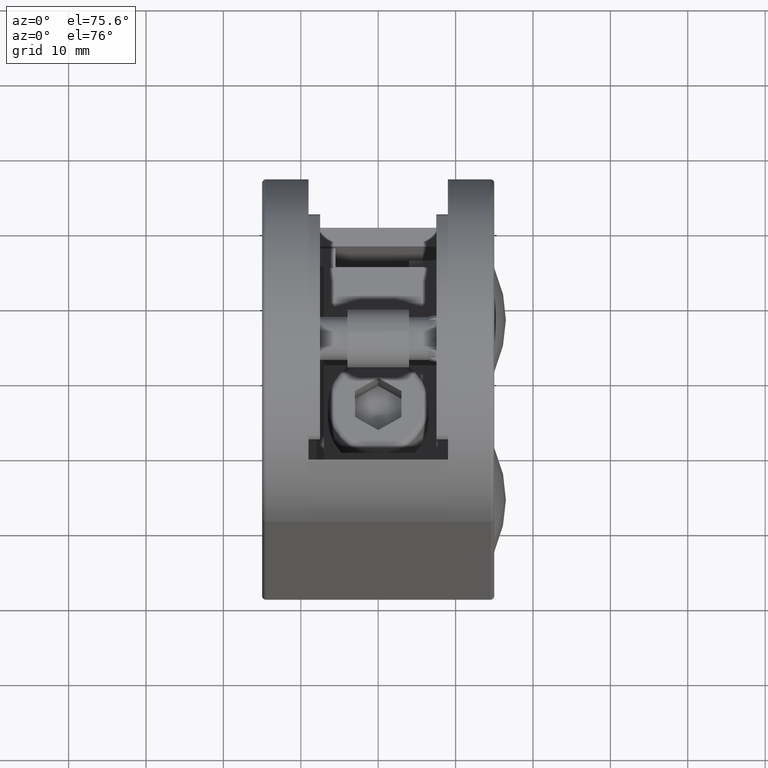
[diagram: clean part render]
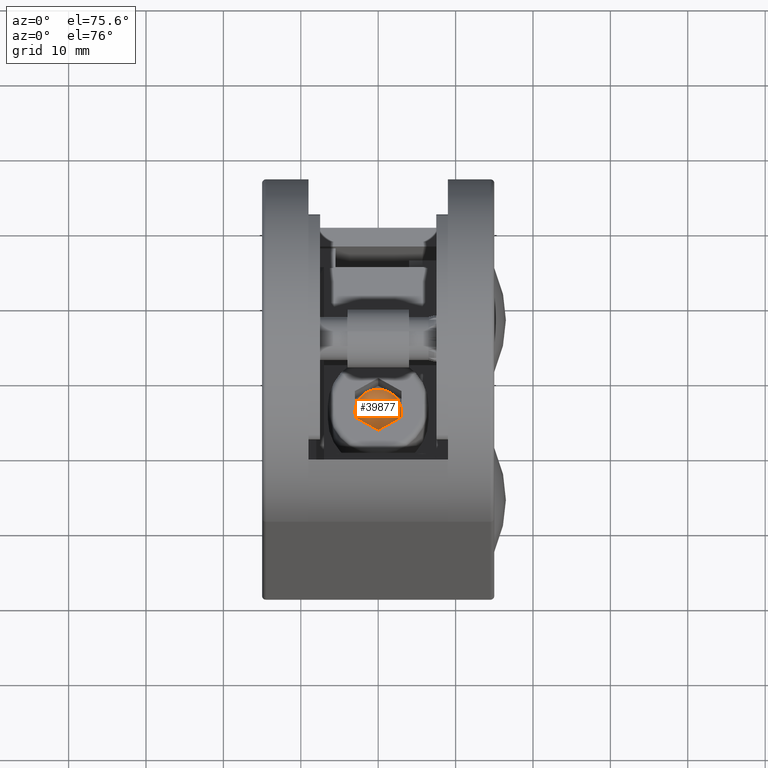
[diagram: same view with one face highlighted and labeled with its STEP entity id]
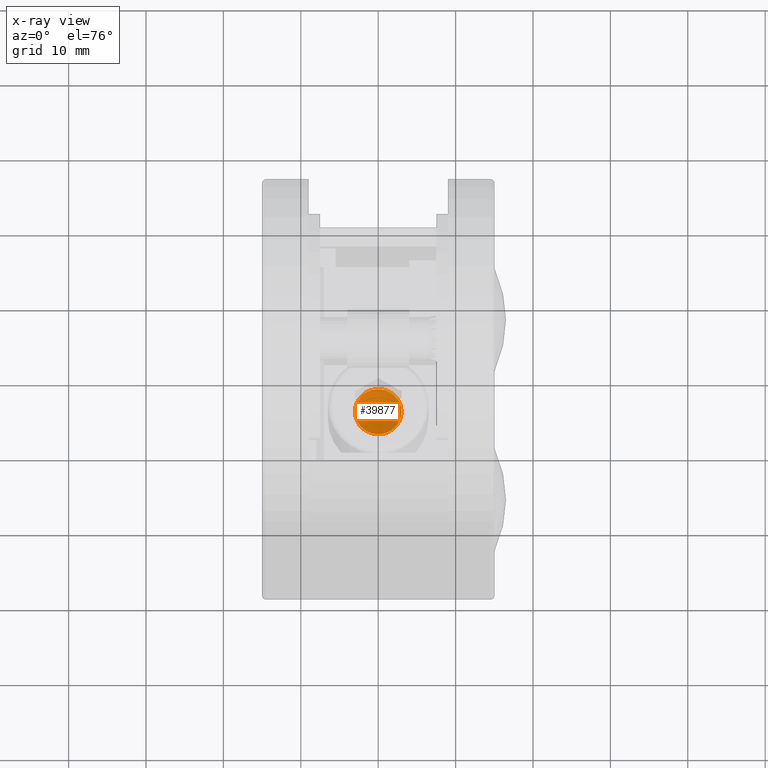
[diagram: x-ray of the same camera — body ghosted, the highlighted face saturated]
A machine part, auxiliary view. The second image highlights one B-rep face of the part: STEP entity #39877.
The next image is the same camera in x-ray: the body ghosted, the highlighted face saturated — about 0% of this face is hidden behind the body in this view.
In plain terms, the highlighted conical surface has half-angle 60 deg.
Its self-contained STEP definition (entity closure, byte-faithful):
#3739 = ORIENTED_EDGE ( 'NONE', *, *, #76622, .T. ) ;
#4991 = DIRECTION ( 'NONE',  ( -1.000000000000000000, -0.000000000000000000, -0.000000000000000000 ) ) ;
#5214 = EDGE_LOOP ( 'NONE', ( #31815, #41239, #3739, #55783, #77844, #7348 ) ) ;
#5683 = CARTESIAN_POINT ( 'NONE',  ( 4.000000000000000000, 3.380207847158604813E-15, 3.009999999999996678 ) ) ;
#7348 = ORIENTED_EDGE ( 'NONE', *, *, #68519, .T. ) ;
#8992 = DIRECTION ( 'NONE',  ( 0.000000000000000000, 0.000000000000000000, 1.000000000000000000 ) ) ;
#10667 = VERTEX_POINT ( 'NONE', #11359 ) ;
#11359 = CARTESIAN_POINT ( 'NONE',  ( 4.000000000000000000, -2.606736465391160440, 1.505000000000004112 ) ) ;
#14042 = DIRECTION ( 'NONE',  ( 0.000000000000000000, 0.000000000000000000, 1.000000000000000000 ) ) ;
#14419 = EDGE_CURVE ( 'NONE', #22786, #40367, #46525, .T. ) ;
#14790 = CIRCLE ( 'NONE', #61664, 3.009999999999999787 ) ;
#18321 = DIRECTION ( 'NONE',  ( -1.000000000000000000, -0.000000000000000000, -0.000000000000000000 ) ) ;
#22628 = CIRCLE ( 'NONE', #74962, 3.009999999999999787 ) ;
#22786 = VERTEX_POINT ( 'NONE', #41282 ) ;
#25876 = DIRECTION ( 'NONE',  ( -1.000000000000000000, -0.000000000000000000, -0.000000000000000000 ) ) ;
#27726 = CIRCLE ( 'NONE', #45560, 3.009999999999999787 ) ;
#28046 = FACE_OUTER_BOUND ( 'NONE', #5214, .T. ) ;
#29240 = CARTESIAN_POINT ( 'NONE',  ( 4.000000000000000000, -2.606736465391167101, -1.504999999999998783 ) ) ;
#30056 = CARTESIAN_POINT ( 'NONE',  ( 4.000000000000000000, 0.000000000000000000, 0.000000000000000000 ) ) ;
#31815 = ORIENTED_EDGE ( 'NONE', *, *, #73510, .T. ) ;
#34337 = CARTESIAN_POINT ( 'NONE',  ( 4.000000000000000000, -3.380207847158609940E-15, -3.010000000000001563 ) ) ;
#35356 = DIRECTION ( 'NONE',  ( -1.000000000000000000, -0.000000000000000000, -0.000000000000000000 ) ) ;
#37176 = DIRECTION ( 'NONE',  ( -1.000000000000000000, -0.000000000000000000, -0.000000000000000000 ) ) ;
#38257 = AXIS2_PLACEMENT_3D ( 'NONE', #75644, #18321, #88585 ) ;
#38957 = CIRCLE ( 'NONE', #77627, 3.009999999999999787 ) ;
#39467 = DIRECTION ( 'NONE',  ( 0.000000000000000000, 0.000000000000000000, 1.000000000000000000 ) ) ;
#39877 = ADVANCED_FACE ( 'NONE', ( #28046 ), #80922, .F. ) ;
#40367 = VERTEX_POINT ( 'NONE', #41045 ) ;
#41045 = CARTESIAN_POINT ( 'NONE',  ( 4.000000000000000000, 2.606736465391155111, -1.505000000000001670 ) ) ;
#41239 = ORIENTED_EDGE ( 'NONE', *, *, #14419, .T. ) ;
#41282 = CARTESIAN_POINT ( 'NONE',  ( 4.000000000000000000, 2.606736465391162216, 1.504999999999996119 ) ) ;
#42590 = VERTEX_POINT ( 'NONE', #34337 ) ;
#45560 = AXIS2_PLACEMENT_3D ( 'NONE', #47417, #4991, #89871 ) ;
#46525 = CIRCLE ( 'NONE', #73695, 3.009999999999999787 ) ;
#47180 = CARTESIAN_POINT ( 'NONE',  ( 4.000000000000000000, 0.000000000000000000, 0.000000000000000000 ) ) ;
#47417 = CARTESIAN_POINT ( 'NONE',  ( 4.000000000000000000, 0.000000000000000000, 0.000000000000000000 ) ) ;
#48932 = DIRECTION ( 'NONE',  ( -1.000000000000000000, -0.000000000000000000, -0.000000000000000000 ) ) ;
#55783 = ORIENTED_EDGE ( 'NONE', *, *, #61294, .T. ) ;
#61294 = EDGE_CURVE ( 'NONE', #42590, #73214, #38957, .T. ) ;
#61664 = AXIS2_PLACEMENT_3D ( 'NONE', #69861, #35356, #62526 ) ;
#62526 = DIRECTION ( 'NONE',  ( 0.000000000000000000, 0.000000000000000000, 1.000000000000000000 ) ) ;
#65960 = CARTESIAN_POINT ( 'NONE',  ( 4.000000000000000000, 0.000000000000000000, 0.000000000000000000 ) ) ;
#68519 = EDGE_CURVE ( 'NONE', #10667, #74501, #90311, .T. ) ;
#69861 = CARTESIAN_POINT ( 'NONE',  ( 4.000000000000000000, 0.000000000000000000, 0.000000000000000000 ) ) ;
#73214 = VERTEX_POINT ( 'NONE', #29240 ) ;
#73297 = DIRECTION ( 'NONE',  ( 0.000000000000000000, 0.000000000000000000, 1.000000000000000000 ) ) ;
#73510 = EDGE_CURVE ( 'NONE', #74501, #22786, #27726, .T. ) ;
#73695 = AXIS2_PLACEMENT_3D ( 'NONE', #30056, #37176, #8992 ) ;
#74501 = VERTEX_POINT ( 'NONE', #5683 ) ;
#74962 = AXIS2_PLACEMENT_3D ( 'NONE', #47180, #25876, #39467 ) ;
#75644 = CARTESIAN_POINT ( 'NONE',  ( 4.000000000000000000, 0.000000000000000000, 0.000000000000000000 ) ) ;
#76622 = EDGE_CURVE ( 'NONE', #40367, #42590, #14790, .T. ) ;
#77627 = AXIS2_PLACEMENT_3D ( 'NONE', #65960, #80703, #73297 ) ;
#77844 = ORIENTED_EDGE ( 'NONE', *, *, #87838, .T. ) ;
#80703 = DIRECTION ( 'NONE',  ( -1.000000000000000000, -0.000000000000000000, -0.000000000000000000 ) ) ;
#80922 = CONICAL_SURFACE ( 'NONE', #88619, 3.009999999999999787, 1.047197551196593190 ) ;
#87838 = EDGE_CURVE ( 'NONE', #73214, #10667, #22628, .T. ) ;
#88585 = DIRECTION ( 'NONE',  ( 0.000000000000000000, 0.000000000000000000, 1.000000000000000000 ) ) ;
#88619 = AXIS2_PLACEMENT_3D ( 'NONE', #91153, #48932, #14042 ) ;
#89871 = DIRECTION ( 'NONE',  ( 0.000000000000000000, 0.000000000000000000, 1.000000000000000000 ) ) ;
#90311 = CIRCLE ( 'NONE', #38257, 3.009999999999999787 ) ;
#91153 = CARTESIAN_POINT ( 'NONE',  ( 4.000000000000000000, 0.000000000000000000, 0.000000000000000000 ) ) ;